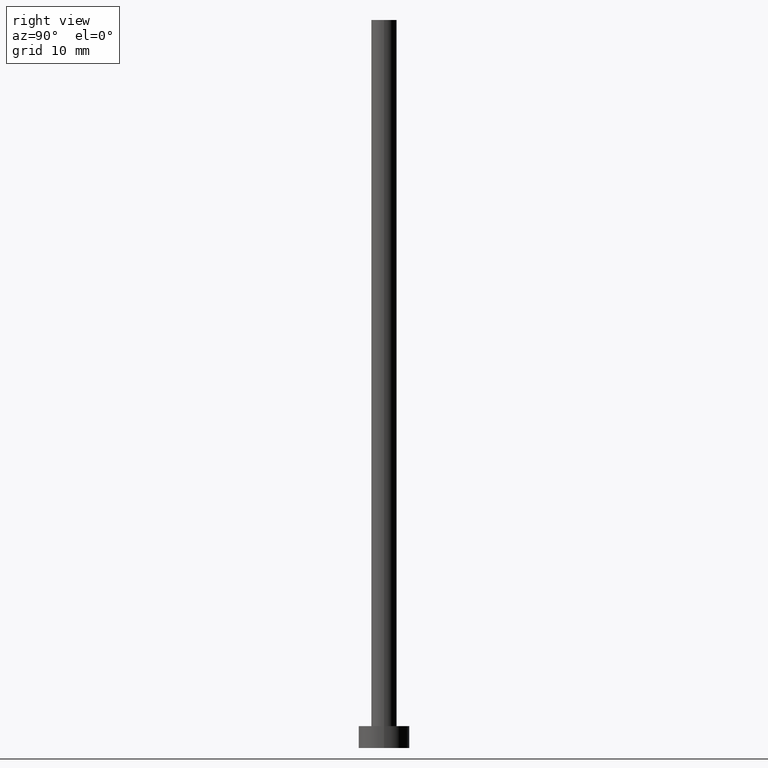
[diagram: clean part render]
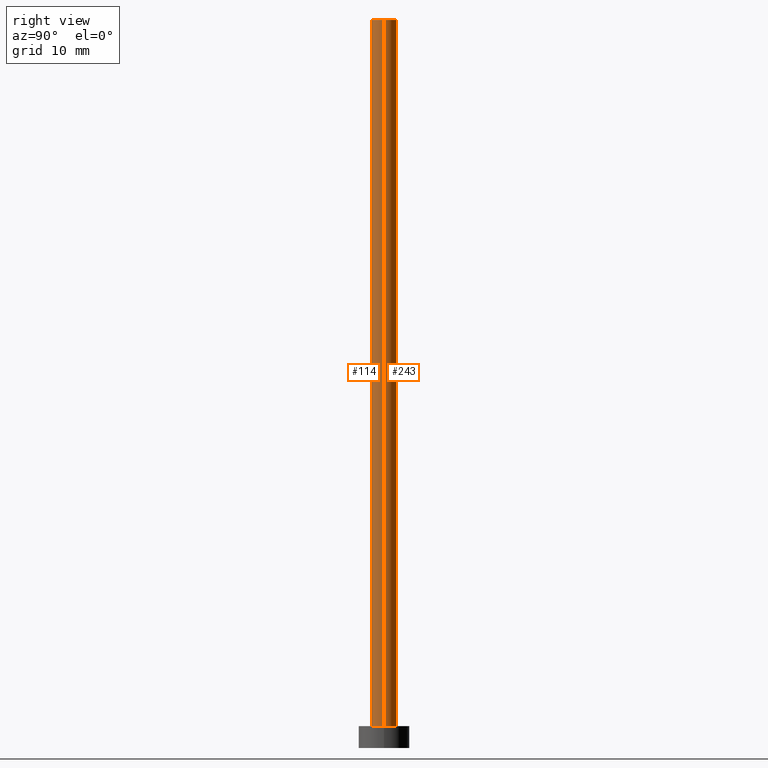
[diagram: same view with one multi-face feature highlighted, each face labeled with its STEP entity id]
A machine part, right view. The highlighted faces form ONE feature: a constant-radius fillet chain: 2 tangent blend faces with common blend radius 1.75 mm. The faces share edges in the B-rep.
Their STEP definitions:
[1] entity #243 (Cylinder):
#12 = EDGE_CURVE ( 'NONE', #50, #189, #15, .T. ) ;
#15 = LINE ( 'NONE', #85, #60 ) ;
#17 = CARTESIAN_POINT ( 'NONE',  ( 0.000000000000000000, 0.000000000000000000, 3.000000000000000000 ) ) ;
#23 = ORIENTED_EDGE ( 'NONE', *, *, #100, .T. ) ;
#24 = AXIS2_PLACEMENT_3D ( 'NONE', #195, #232, #96 ) ;
#26 = ORIENTED_EDGE ( 'NONE', *, *, #12, .F. ) ;
#28 = AXIS2_PLACEMENT_3D ( 'NONE', #17, #150, #75 ) ;
#32 = FACE_OUTER_BOUND ( 'NONE', #129, .T. ) ;
#33 = CARTESIAN_POINT ( 'NONE',  ( 1.750000000000000000, 2.143131898507867804E-16, 100.0000000000000000 ) ) ;
#41 = CIRCLE ( 'NONE', #28, 1.750000000000000000 ) ;
#47 = CARTESIAN_POINT ( 'NONE',  ( 1.750000000000000000, 2.143131898507867804E-16, 100.0000000000000000 ) ) ;
#50 = VERTEX_POINT ( 'NONE', #224 ) ;
#51 = ORIENTED_EDGE ( 'NONE', *, *, #53, .T. ) ;
#53 = EDGE_CURVE ( 'NONE', #223, #226, #202, .T. ) ;
#56 = CARTESIAN_POINT ( 'NONE',  ( -1.750000000000000000, 0.000000000000000000, 3.000000000000000000 ) ) ;
#60 = VECTOR ( 'NONE', #168, 1000.000000000000000 ) ;
#70 = ORIENTED_EDGE ( 'NONE', *, *, #139, .F. ) ;
#75 = DIRECTION ( 'NONE',  ( 1.000000000000000000, 0.000000000000000000, 0.000000000000000000 ) ) ;
#78 = DIRECTION ( 'NONE',  ( -1.000000000000000000, 0.000000000000000000, 0.000000000000000000 ) ) ;
#85 = CARTESIAN_POINT ( 'NONE',  ( -1.750000000000000000, 0.000000000000000000, 100.0000000000000000 ) ) ;
#96 = DIRECTION ( 'NONE',  ( 1.000000000000000000, 0.000000000000000000, 0.000000000000000000 ) ) ;
#99 = CYLINDRICAL_SURFACE ( 'NONE', #220, 1.750000000000000000 ) ;
#100 = EDGE_CURVE ( 'NONE', #226, #189, #41, .T. ) ;
#102 = CIRCLE ( 'NONE', #24, 1.750000000000000000 ) ;
#127 = DIRECTION ( 'NONE',  ( -0.000000000000000000, -0.000000000000000000, -1.000000000000000000 ) ) ;
#129 = EDGE_LOOP ( 'NONE', ( #70, #51, #23, #26 ) ) ;
#139 = EDGE_CURVE ( 'NONE', #223, #50, #102, .T. ) ;
#150 = DIRECTION ( 'NONE',  ( 0.000000000000000000, 0.000000000000000000, 1.000000000000000000 ) ) ;
#168 = DIRECTION ( 'NONE',  ( -0.000000000000000000, -0.000000000000000000, -1.000000000000000000 ) ) ;
#177 = CARTESIAN_POINT ( 'NONE',  ( 0.000000000000000000, 0.000000000000000000, 100.0000000000000000 ) ) ;
#178 = DIRECTION ( 'NONE',  ( -0.000000000000000000, -0.000000000000000000, -1.000000000000000000 ) ) ;
#189 = VERTEX_POINT ( 'NONE', #56 ) ;
#195 = CARTESIAN_POINT ( 'NONE',  ( 0.000000000000000000, 0.000000000000000000, 100.0000000000000000 ) ) ;
#202 = LINE ( 'NONE', #47, #255 ) ;
#213 = CARTESIAN_POINT ( 'NONE',  ( 1.750000000000000000, 2.143131898507867804E-16, 3.000000000000000000 ) ) ;
#220 = AXIS2_PLACEMENT_3D ( 'NONE', #177, #178, #78 ) ;
#223 = VERTEX_POINT ( 'NONE', #33 ) ;
#224 = CARTESIAN_POINT ( 'NONE',  ( -1.750000000000000000, 0.000000000000000000, 100.0000000000000000 ) ) ;
#226 = VERTEX_POINT ( 'NONE', #213 ) ;
#232 = DIRECTION ( 'NONE',  ( 0.000000000000000000, 0.000000000000000000, 1.000000000000000000 ) ) ;
#243 = ADVANCED_FACE ( 'NONE', ( #32 ), #99, .T. ) ;
#255 = VECTOR ( 'NONE', #127, 1000.000000000000000 ) ;
[2] entity #114 (Cylinder):
#12 = EDGE_CURVE ( 'NONE', #50, #189, #15, .T. ) ;
#15 = LINE ( 'NONE', #85, #60 ) ;
#19 = DIRECTION ( 'NONE',  ( 0.000000000000000000, 0.000000000000000000, 1.000000000000000000 ) ) ;
#33 = CARTESIAN_POINT ( 'NONE',  ( 1.750000000000000000, 2.143131898507867804E-16, 100.0000000000000000 ) ) ;
#36 = AXIS2_PLACEMENT_3D ( 'NONE', #154, #253, #121 ) ;
#47 = CARTESIAN_POINT ( 'NONE',  ( 1.750000000000000000, 2.143131898507867804E-16, 100.0000000000000000 ) ) ;
#49 = CIRCLE ( 'NONE', #227, 1.750000000000000000 ) ;
#50 = VERTEX_POINT ( 'NONE', #224 ) ;
#53 = EDGE_CURVE ( 'NONE', #223, #226, #202, .T. ) ;
#56 = CARTESIAN_POINT ( 'NONE',  ( -1.750000000000000000, 0.000000000000000000, 3.000000000000000000 ) ) ;
#57 = CARTESIAN_POINT ( 'NONE',  ( 0.000000000000000000, 0.000000000000000000, 3.000000000000000000 ) ) ;
#60 = VECTOR ( 'NONE', #168, 1000.000000000000000 ) ;
#67 = ORIENTED_EDGE ( 'NONE', *, *, #197, .T. ) ;
#79 = DIRECTION ( 'NONE',  ( 0.000000000000000000, 0.000000000000000000, 1.000000000000000000 ) ) ;
#85 = CARTESIAN_POINT ( 'NONE',  ( -1.750000000000000000, 0.000000000000000000, 100.0000000000000000 ) ) ;
#90 = EDGE_LOOP ( 'NONE', ( #229, #166, #111, #67 ) ) ;
#95 = DIRECTION ( 'NONE',  ( 1.000000000000000000, 0.000000000000000000, 0.000000000000000000 ) ) ;
#106 = AXIS2_PLACEMENT_3D ( 'NONE', #57, #79, #95 ) ;
#111 = ORIENTED_EDGE ( 'NONE', *, *, #12, .T. ) ;
#114 = ADVANCED_FACE ( 'NONE', ( #118 ), #133, .T. ) ;
#118 = FACE_OUTER_BOUND ( 'NONE', #90, .T. ) ;
#121 = DIRECTION ( 'NONE',  ( -1.000000000000000000, 0.000000000000000000, 0.000000000000000000 ) ) ;
#127 = DIRECTION ( 'NONE',  ( -0.000000000000000000, -0.000000000000000000, -1.000000000000000000 ) ) ;
#133 = CYLINDRICAL_SURFACE ( 'NONE', #36, 1.750000000000000000 ) ;
#154 = CARTESIAN_POINT ( 'NONE',  ( 0.000000000000000000, 0.000000000000000000, 100.0000000000000000 ) ) ;
#159 = CIRCLE ( 'NONE', #106, 1.750000000000000000 ) ;
#166 = ORIENTED_EDGE ( 'NONE', *, *, #242, .F. ) ;
#168 = DIRECTION ( 'NONE',  ( -0.000000000000000000, -0.000000000000000000, -1.000000000000000000 ) ) ;
#176 = CARTESIAN_POINT ( 'NONE',  ( 0.000000000000000000, 0.000000000000000000, 100.0000000000000000 ) ) ;
#189 = VERTEX_POINT ( 'NONE', #56 ) ;
#197 = EDGE_CURVE ( 'NONE', #189, #226, #159, .T. ) ;
#202 = LINE ( 'NONE', #47, #255 ) ;
#213 = CARTESIAN_POINT ( 'NONE',  ( 1.750000000000000000, 2.143131898507867804E-16, 3.000000000000000000 ) ) ;
#223 = VERTEX_POINT ( 'NONE', #33 ) ;
#224 = CARTESIAN_POINT ( 'NONE',  ( -1.750000000000000000, 0.000000000000000000, 100.0000000000000000 ) ) ;
#226 = VERTEX_POINT ( 'NONE', #213 ) ;
#227 = AXIS2_PLACEMENT_3D ( 'NONE', #176, #19, #254 ) ;
#229 = ORIENTED_EDGE ( 'NONE', *, *, #53, .F. ) ;
#242 = EDGE_CURVE ( 'NONE', #50, #223, #49, .T. ) ;
#253 = DIRECTION ( 'NONE',  ( -0.000000000000000000, -0.000000000000000000, -1.000000000000000000 ) ) ;
#254 = DIRECTION ( 'NONE',  ( 1.000000000000000000, 0.000000000000000000, 0.000000000000000000 ) ) ;
#255 = VECTOR ( 'NONE', #127, 1000.000000000000000 ) ;